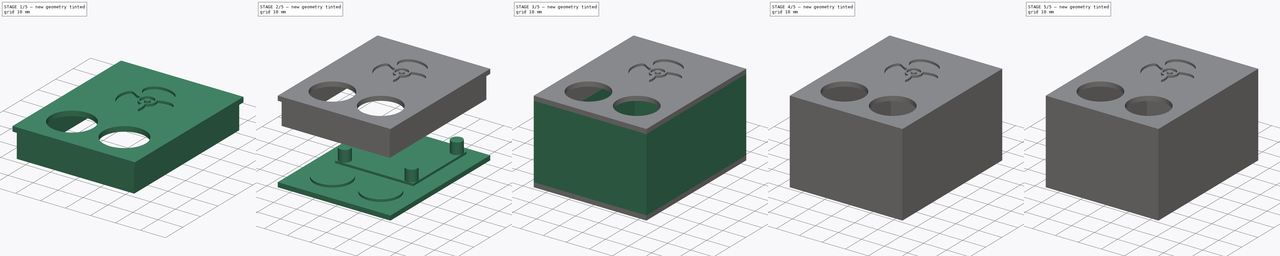
[diagram: build sequence overview — one tinted view per stage of 5, left to right]
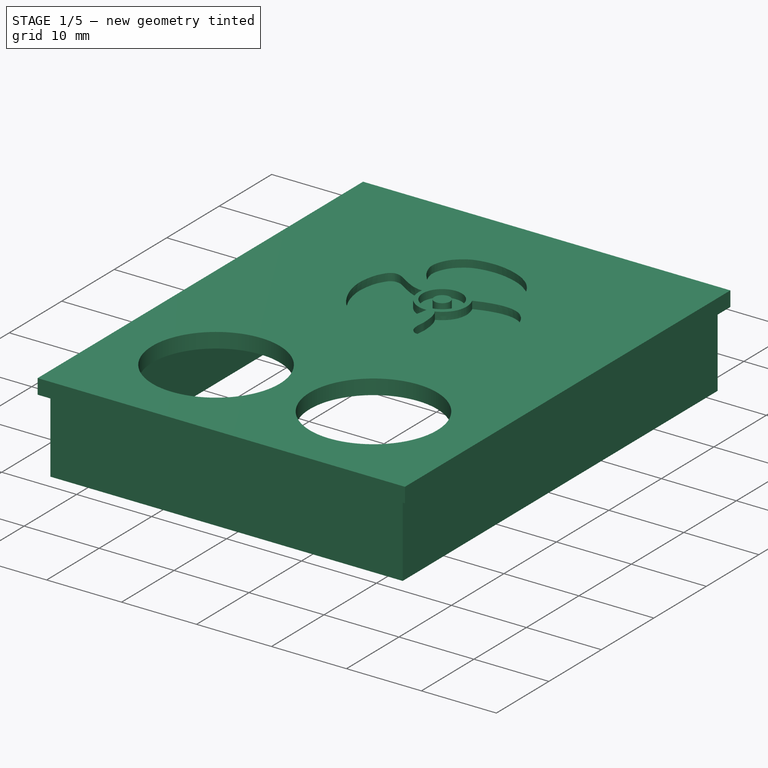
[diagram: stage 1 of 5 — iso view after this stage's code; geometry added in this stage tinted green]
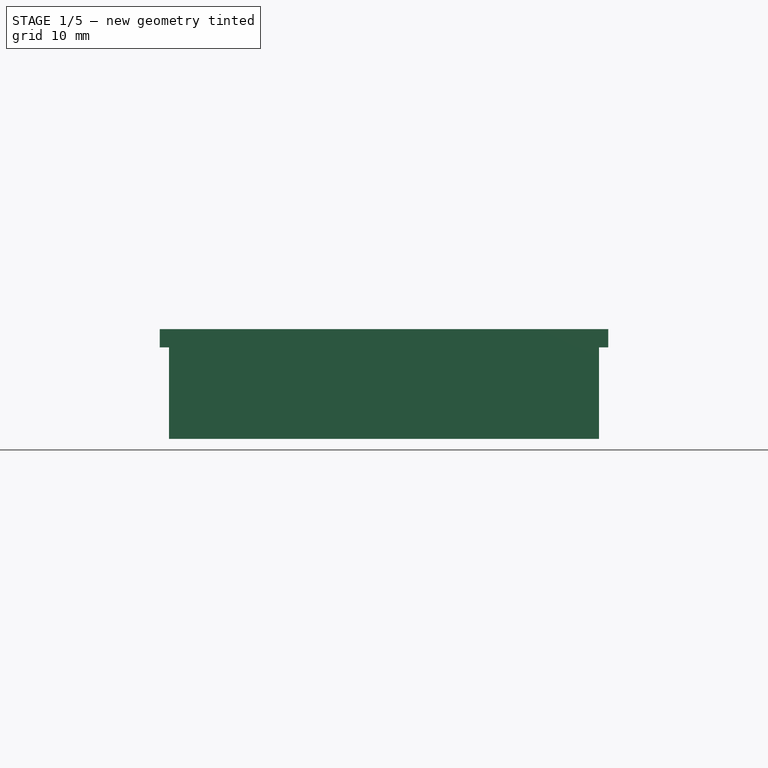
[diagram: stage 1 of 5 — front view after this stage's code; geometry added in this stage tinted green]
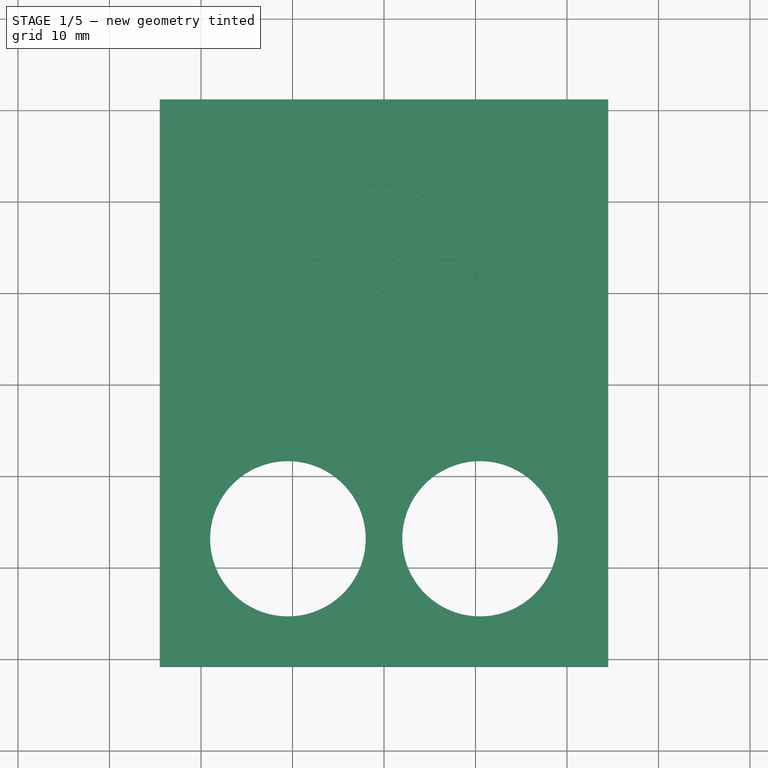
[diagram: stage 1 of 5 — top view after this stage's code; geometry added in this stage tinted green]
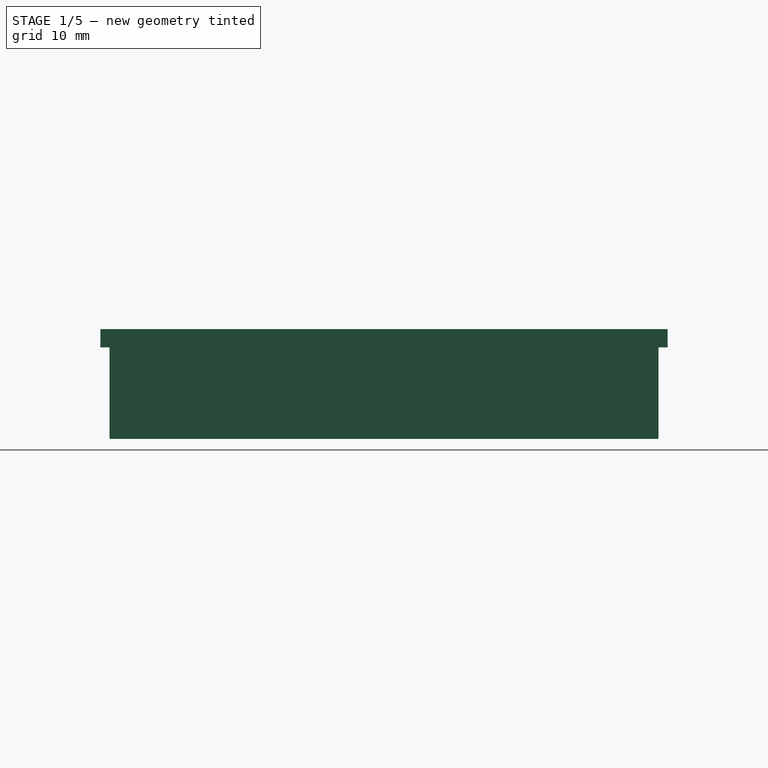
[diagram: stage 1 of 5 — right view after this stage's code; geometry added in this stage tinted green]
FCSTD DOCUMENT  (FreeCAD 0.19R)
Label: air-fan-box
License: All rights reserved
LicenseURL: http://en.wikipedia.org/wiki/All_rights_reserved
objects: Sketcher::SketchObject×13, PartDesign::Pad×7, PartDesign::Pocket×6, Part::Part2DObjectPython×4, Part::Extrusion×4, PartDesign::Body×3, Part::Cut×2, Part::Fuse×2, PartDesign::FeatureBase×1, Image::ImagePlane×1
note: 55 computed .brp shape members not serialized (recipe doc carries the construction recipe); baked Part::Feature solids carry a one-line shape summary decoded from their .brp

FEATURE [Sketcher::SketchObject] Sketch008
  AttachmentOffset = pos=(0,0,34) rot=(0,0,1;0rad)
  FullyConstrained = true
  MapMode = 5
  Placement = pos=(0,0,34) rot=(0,0,1;0rad)
  Support = -> [XY_Plane002]
  sketch-geometry (4):
    g0: LineSegment StartX=-24.5 StartY=31 StartZ=0 EndX=24.5 EndY=31 EndZ=0
    g1: LineSegment StartX=24.5 StartY=31 StartZ=0 EndX=24.5 EndY=-31 EndZ=0
    g2: LineSegment StartX=24.5 StartY=-31 StartZ=0 EndX=-24.5 EndY=-31 EndZ=0
    g3: LineSegment StartX=-24.5 StartY=-31 StartZ=0 EndX=-24.5 EndY=31 EndZ=0
  constraints (11):
    c: Coincident(g0,g1)
    c: Coincident(g1,g2)
    c: Coincident(g2,g3)
    c: Coincident(g3,g0)
    c: Horizontal(g0)
    c: Horizontal(g2)
    c: Vertical(g1)
    c: Vertical(g3)
    c: Symmetric(g0,g1,g-1)
    c: DistanceX(g0,g0) = 49
    c: DistanceY(g1,g1) = 62
FEATURE [PartDesign::Pad] Pad005
  Direction = (1,1,1)
  Length = 2
  Length2 = 100
  Profile = -> Sketch008
  Type = 0
FEATURE [Sketcher::SketchObject] Sketch009
  ExternalGeometry = -> [Pad005]
  FullyConstrained = true
  MapMode = 5
  Placement = pos=(0,0,34) rot=(1,0,0;3.14159rad)
  Support = -> [Pad005]
  sketch-geometry (8):
    g0: LineSegment StartX=-23.5 StartY=30 StartZ=0 EndX=23.5 EndY=30 EndZ=0
    g1: LineSegment StartX=23.5 StartY=30 StartZ=0 EndX=23.5 EndY=-30 EndZ=0
    g2: LineSegment StartX=23.5 StartY=-30 StartZ=0 EndX=-23.5 EndY=-30 EndZ=0
    g3: LineSegment StartX=-23.5 StartY=-30 StartZ=0 EndX=-23.5 EndY=30 EndZ=0
    g4: LineSegment StartX=-22.5 StartY=29 StartZ=0 EndX=22.5 EndY=29 EndZ=0
    g5: LineSegment StartX=22.5 StartY=29 StartZ=0 EndX=22.5 EndY=-29 EndZ=0
    g6: LineSegment StartX=22.5 StartY=-29 StartZ=0 EndX=-22.5 EndY=-29 EndZ=0
    g7: LineSegment StartX=-22.5 StartY=-29 StartZ=0 EndX=-22.5 EndY=29 EndZ=0
  constraints (24):
    c: Coincident(g0,g1)
    c: Coincident(g1,g2)
    c: Coincident(g2,g3)
    c: Coincident(g3,g0)
    c: Horizontal(g0)
    c: Horizontal(g2)
    c: Vertical(g1)
    c: Vertical(g3)
    c: Coincident(g4,g5)
    c: Coincident(g5,g6)
    c: Coincident(g6,g7)
    c: Coincident(g7,g4)
    c: Horizontal(g4)
    c: Horizontal(g6)
    c: Vertical(g5)
    c: Vertical(g7)
    c: DistanceX(g-3,g0) = 1
    c: DistanceX(g0,g4) = 1
    c: DistanceX(g5,g1) = 1
    c: DistanceX(g1,g-4) = 1
    c: DistanceY(g0,g-3) = 1
    c: DistanceY(g4,g0) = 1
    c: DistanceY(g1,g5) = 1
    c: DistanceY(g-4,g1) = 1
FEATURE [PartDesign::Pad] Pad006
  BaseFeature = -> Pad005
  Direction = (1,1,1)
  Length = 10
  Length2 = 100
  Profile = -> Sketch009
  Type = 0
FEATURE [Sketcher::SketchObject] Sketch010
  ExternalGeometry = -> [Pad006]
  FullyConstrained = true
  MapMode = 5
  Placement = pos=(0,0,36) rot=(0,0,1;0rad)
  Support = -> [Pad006]
  sketch-geometry (2):
    g0: Circle CenterX=-10.5 CenterY=-17 CenterZ=0 NormalX=0 NormalY=0 NormalZ=1 AngleXU=0 Radius=8.5
    g1: Circle CenterX=10.5 CenterY=-17 CenterZ=0 NormalX=0 NormalY=0 NormalZ=1 AngleXU=0 Radius=8.5
  constraints (5):
    c: Diameter(g0) = 17
    c: Diameter(g1) = 17
    c: Symmetric(g0,g1,g-2)
    c: DistanceX(g1,g-3) = 14
    c: DistanceY(g-3,g1) = 14
FEATURE [PartDesign::Pocket] Pocket003
  BaseFeature = -> Pad006
  Length = 2
  Length2 = 100
  Profile = -> Sketch010
  Type = 0
FEATURE [PartDesign::Body] Body001  label="box"
  BaseFeature = -> Fusion001
  Group = -> [BaseFeature,Sketch011,Pocket004]
  Origin = -> Origin001
  Tip = -> Pocket004
FEATURE [Image::ImagePlane] ImagePlane
  Placement = pos=(0,11,29) rot=(0,0,1;0rad)
  XSize = 30
  YSize = 30
FEATURE [Sketcher::SketchObject] Sketch012
  FullyConstrained = false
  MapMode = 5
  Placement = pos=(0,0,36) rot=(0,0,1;0rad)
  Support = -> [Pocket003]
  sketch-geometry (342):
    g0-g15: Circle x16 (B-spline internal-alignment scaffolding for g16; pole/knot coordinates omitted)
    g16: BSplineCurve PolesCount=16 KnotsCount=14 Degree=3 IsPeriodic=0
    g17-g30: GeomPoint x14 (B-spline internal-alignment scaffolding for g16; pole/knot coordinates omitted)
    g31-g42: Circle x12 (B-spline internal-alignment scaffolding for g43; pole/knot coordinates omitted)
    g43: BSplineCurve PolesCount=12 KnotsCount=10 Degree=3 IsPeriodic=0
    g44-g53: GeomPoint x10 (B-spline internal-alignment scaffolding for g43; pole/knot coordinates omitted)
    g54-g69: Circle x16 (B-spline internal-alignment scaffolding for g70; pole/knot coordinates omitted)
    g70: BSplineCurve PolesCount=16 KnotsCount=14 Degree=3 IsPeriodic=0
    g71-g84: GeomPoint x14 (B-spline internal-alignment scaffolding for g70; pole/knot coordinates omitted)
    g85-g95: Circle x11 (B-spline internal-alignment scaffolding for g96; pole/knot coordinates omitted)
    g96: BSplineCurve PolesCount=11 KnotsCount=9 Degree=3 IsPeriodic=0
    g97-g105: GeomPoint x9 (B-spline internal-alignment scaffolding for g96; pole/knot coordinates omitted)
    g106-g150: Circle x45 (B-spline internal-alignment scaffolding for g151; pole/knot coordinates omitted)
    g151: BSplineCurve PolesCount=45 KnotsCount=43 Degree=3 IsPeriodic=0
    g152-g194: GeomPoint x43 (B-spline internal-alignment scaffolding for g151; pole/knot coordinates omitted)
    g195-g211: Circle x17 (B-spline internal-alignment scaffolding for g212; pole/knot coordinates omitted)
    g212: BSplineCurve PolesCount=17 KnotsCount=15 Degree=3 IsPeriodic=0
    g213-g227: GeomPoint x15 (B-spline internal-alignment scaffolding for g212; pole/knot coordinates omitted)
    g228-g270: Circle x43 (B-spline internal-alignment scaffolding for g271; pole/knot coordinates omitted)
    g271: BSplineCurve PolesCount=43 KnotsCount=41 Degree=3 IsPeriodic=0
    g272-g312: GeomPoint x41 (B-spline internal-alignment scaffolding for g271; pole/knot coordinates omitted)
    g313-g326: Circle x14 (B-spline internal-alignment scaffolding for g327; pole/knot coordinates omitted)
    g327: BSplineCurve PolesCount=14 KnotsCount=12 Degree=3 IsPeriodic=0
    g328-g339: GeomPoint x12 (B-spline internal-alignment scaffolding for g327; pole/knot coordinates omitted)
    g340: Circle CenterX=0.008964 CenterY=11.0773 CenterZ=0 NormalX=0 NormalY=0 NormalZ=1 AngleXU=0 Radius=1.04924
    g341: Circle CenterX=0.008964 CenterY=11.0773 CenterZ=0 NormalX=0 NormalY=0 NormalZ=1 AngleXU=0 Radius=2.60691
  constraints (47):
    c: Weight(g0) = 1
    c: Equal(g0, g1-g5) x5
    c: PointOnObject(g5,g4)
    c: Equal(g0, g6-g12) x7
    c: PointOnObject(g12,g11)
    c: Equal(g0,g13)
    c: Equal(g0,g14)
    c: Equal(g0,g15)
    c: InternalAlignment(g0-g15 -> g16) x16
    c: InternalAlignment(g17-g30 -> g16) x14
    c: Coincident(g43,g16)
    c: Weight(g31) = 1
    c: Equal(g31, g32-g42) x11
    c: InternalAlignment(g31-g42 -> g43) x12
    c: InternalAlignment(g44-g53 -> g43) x10
    c: Coincident(g70,g43)
    c: Weight(g54) = 1
    c: Equal(g54, g55-g69) x15
    c: InternalAlignment(g54-g69 -> g70) x16
    c: InternalAlignment(g71-g84 -> g70) x14
    c: Coincident(g96,g16)
    c: Weight(g85) = 1
    c: Equal(g85, g86-g95) x10
    c: Coincident(g96,g70)
    c: InternalAlignment(g85-g95 -> g96) x11
    c: InternalAlignment(g97-g105 -> g96) x9
    c: Weight(g106) = 1
    c: Equal(g106, g107-g150) x44
    c: InternalAlignment(g106-g150 -> g151) x45
    c: InternalAlignment(g152-g194 -> g151) x43
    c: Coincident(g212,g151)
    c: Weight(g195) = 1
    c: Equal(g195, g196-g211) x16
    c: Coincident(g212,g151)
    c: InternalAlignment(g195-g211 -> g212) x17
    c: InternalAlignment(g213-g227 -> g212) x15
    c: Weight(g228) = 1
    c: Equal(g228, g229-g270) x42
    c: InternalAlignment(g228-g270 -> g271) x43
    c: InternalAlignment(g272-g312 -> g271) x41
    c: Coincident(g327,g271)
    c: Weight(g313) = 1
    c: Equal(g313, g314-g326) x13
    c: Coincident(g327,g271)
    c: InternalAlignment(g313-g326 -> g327) x14
    c: InternalAlignment(g328-g339 -> g327) x12
    c: Coincident(g341,g340)
FEATURE [PartDesign::Pocket] Pocket005
  BaseFeature = -> Pocket003
  Length = 1
  Length2 = 100
  Profile = -> Sketch012
  Type = 0
FEATURE [PartDesign::Body] Body002  label="top"
  Group = -> [Sketch008,Pad005,Sketch009,Pad006,Sketch010,Pocket003,Sketch012,Pocket005]
  Origin = -> Origin002
  Tip = -> Pocket005
note: 4 file-system paths scrubbed to <path> (originals preserved in the JSON sidecar)
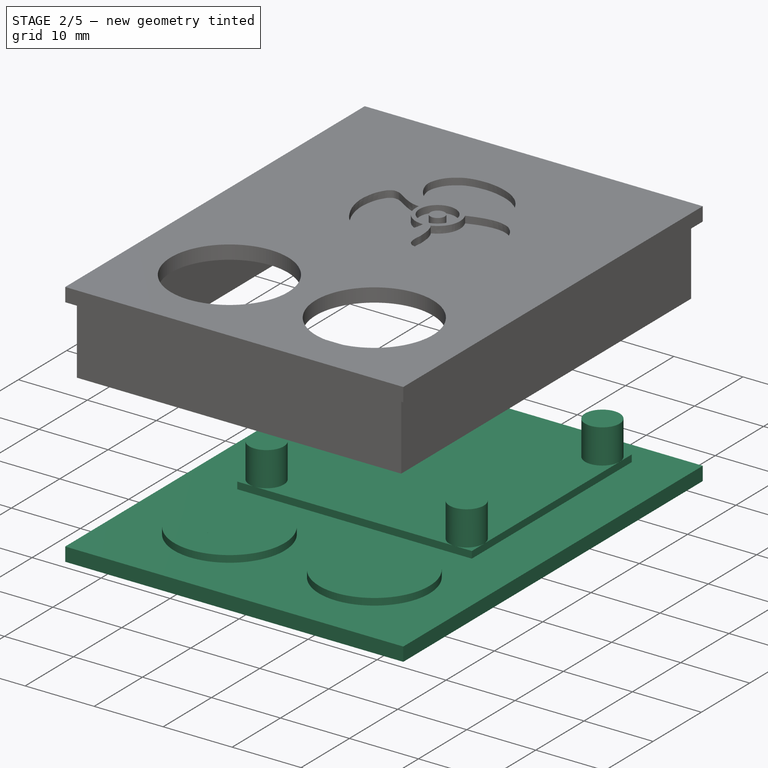
[diagram: stage 2 of 5 — iso view after this stage's code; geometry added in this stage tinted green]
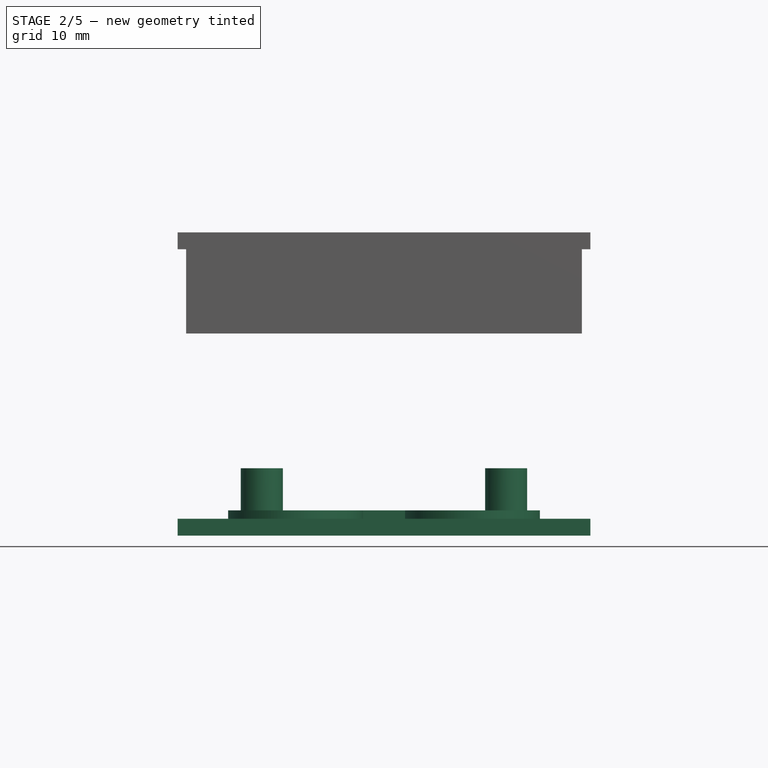
[diagram: stage 2 of 5 — front view after this stage's code; geometry added in this stage tinted green]
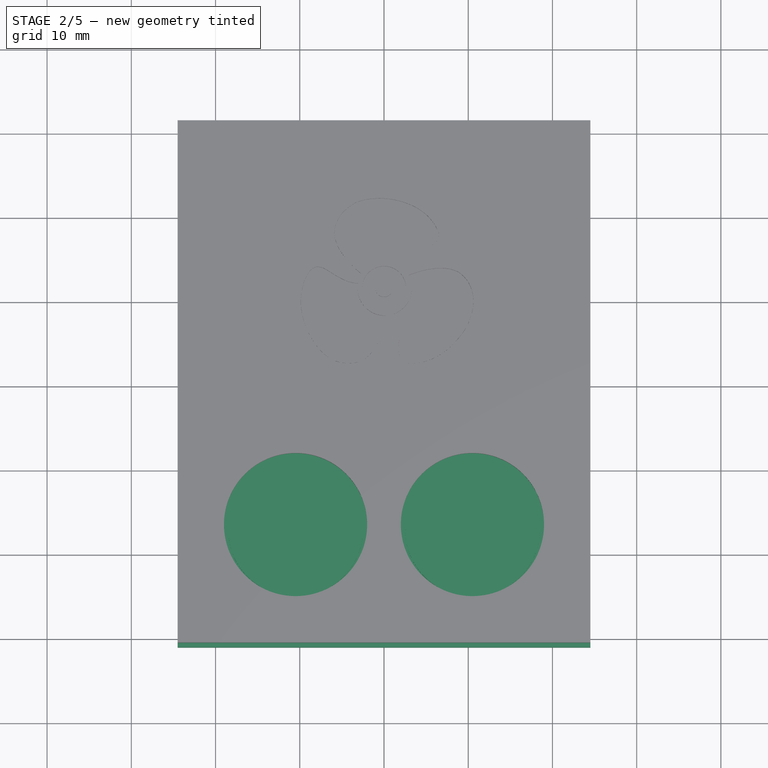
[diagram: stage 2 of 5 — top view after this stage's code; geometry added in this stage tinted green]
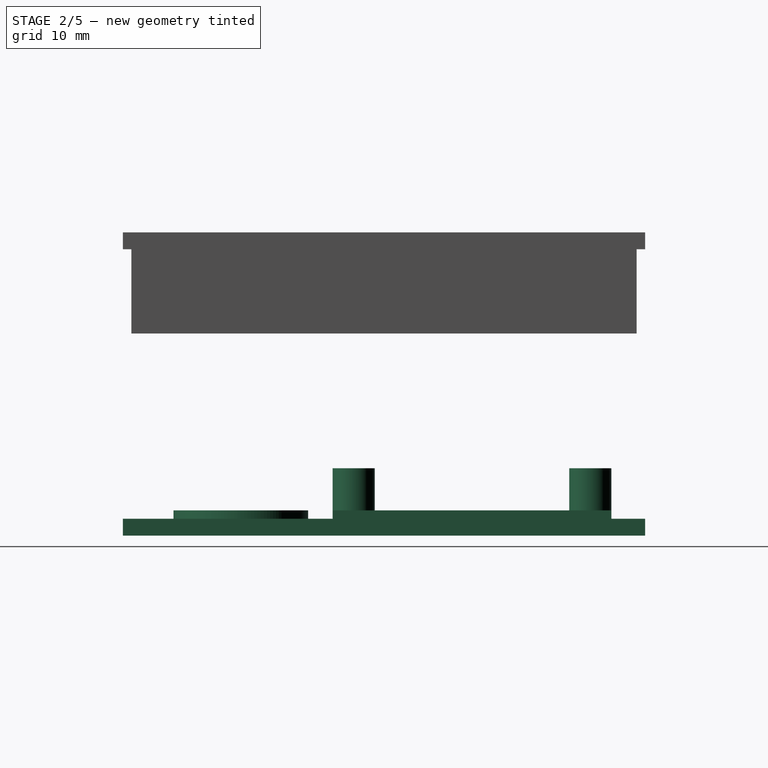
[diagram: stage 2 of 5 — right view after this stage's code; geometry added in this stage tinted green]
FEATURE [Sketcher::SketchObject] Sketch
  FullyConstrained = true
  MapMode = 5
  Support = -> [XY_Plane]
  sketch-geometry (4):
    g0: LineSegment StartX=-24.5 StartY=31 StartZ=0 EndX=24.5 EndY=31 EndZ=0
    g1: LineSegment StartX=24.5 StartY=31 StartZ=0 EndX=24.5 EndY=-31 EndZ=0
    g2: LineSegment StartX=24.5 StartY=-31 StartZ=0 EndX=-24.5 EndY=-31 EndZ=0
    g3: LineSegment StartX=-24.5 StartY=-31 StartZ=0 EndX=-24.5 EndY=31 EndZ=0
  constraints (11):
    c: Coincident(g0,g1)
    c: Coincident(g1,g2)
    c: Coincident(g2,g3)
    c: Coincident(g3,g0)
    c: Horizontal(g0)
    c: Horizontal(g2)
    c: Vertical(g1)
    c: Vertical(g3)
    c: Symmetric(g0,g1,g-1)
    c: DistanceY(g1,g1) = 62
    c: DistanceX(g0,g0) = 49
FEATURE [PartDesign::Pad] Pad
  Direction = (1,1,1)
  Length = 2
  Length2 = 100
  Profile = -> Sketch
  Type = 0
FEATURE [Sketcher::SketchObject] Sketch001
  ExternalGeometry = -> [Pad]
  FullyConstrained = true
  MapMode = 5
  Placement = pos=(0,0,2) rot=(0,0,1;0rad)
  Support = -> [Pad]
  sketch-geometry (4):
    g0: LineSegment StartX=-17 StartY=27 StartZ=0 EndX=17 EndY=27 EndZ=0
    g1: LineSegment StartX=17 StartY=27 StartZ=0 EndX=17 EndY=-6.1 EndZ=0
    g2: LineSegment StartX=17 StartY=-6.1 StartZ=0 EndX=-17 EndY=-6.1 EndZ=0
    g3: LineSegment StartX=-17 StartY=-6.1 StartZ=0 EndX=-17 EndY=27 EndZ=0
  constraints (11):
    c: Coincident(g0,g1)
    c: Coincident(g1,g2)
    c: Coincident(g2,g3)
    c: Coincident(g3,g0)
    c: Horizontal(g2)
    c: Vertical(g1)
    c: Vertical(g3)
    c: DistanceY(g1,g1) = 33.1
    c: DistanceX(g0,g0) = 34
    c: Symmetric(g0,g0,g-2)
    c: DistanceY(g0,g-3) = 4
FEATURE [PartDesign::Pad] Pad001
  BaseFeature = -> Pad
  Direction = (1,1,1)
  Length = 1
  Length2 = 100
  Profile = -> Sketch001
  Type = 0
FEATURE [Sketcher::SketchObject] Sketch002
  ExternalGeometry = -> [Pad001]
  FullyConstrained = true
  MapMode = 5
  Placement = pos=(0,0,2) rot=(0,0,1;0rad)
  Support = -> [Pad001]
  sketch-geometry (2):
    g0: Circle CenterX=-10.5 CenterY=-17 CenterZ=0 NormalX=0 NormalY=0 NormalZ=1 AngleXU=0 Radius=8
    g1: Circle CenterX=10.5 CenterY=-17 CenterZ=0 NormalX=0 NormalY=0 NormalZ=1 AngleXU=0 Radius=8
  constraints (5):
    c: Diameter(g0) = 16
    c: Diameter(g1) = 16
    c: Symmetric(g0,g1,g-2)
    c: DistanceY(g-3,g1) = 14
    c: DistanceX(g1,g-3) = 14
FEATURE [PartDesign::Pad] Pad002
  BaseFeature = -> Pad001
  Direction = (1,1,1)
  Length = 1
  Length2 = 100
  Profile = -> Sketch002
  Type = 0
FEATURE [Sketcher::SketchObject] Sketch003
  ExternalGeometry = -> [Pad002]
  FullyConstrained = true
  MapMode = 5
  Placement = pos=(0,0,3) rot=(0,0,1;0rad)
  Support = -> [Pad002]
  sketch-geometry (4):
    g0: Circle CenterX=-14.5 CenterY=24.5 CenterZ=0 NormalX=0 NormalY=0 NormalZ=1 AngleXU=0 Radius=2.5
    g1: Circle CenterX=14.5 CenterY=24.5 CenterZ=0 NormalX=0 NormalY=0 NormalZ=1 AngleXU=0 Radius=2.5
    g2: Circle CenterX=14.5 CenterY=-3.6 CenterZ=0 NormalX=0 NormalY=0 NormalZ=1 AngleXU=0 Radius=2.5
    g3: Circle CenterX=-14.5 CenterY=-3.6 CenterZ=0 NormalX=0 NormalY=0 NormalZ=1 AngleXU=0 Radius=2.5
  constraints (12):
    c: Diameter(g0) = 5
    c: Diameter(g1) = 5
    c: Diameter(g3) = 5
    c: Diameter(g2) = 5
    c: DistanceX(g-3,g0) = 2.5
    c: DistanceY(g0,g-3) = 2.5
    c: DistanceX(g1,g-3) = 2.5
    c: DistanceY(g1,g-3) = 2.5
    c: DistanceY(g-4,g2) = 2.5
    c: DistanceY(g-4,g3) = 2.5
    c: DistanceX(g-4,g3) = 2.5
    c: DistanceX(g2,g-4) = 2.5
FEATURE [PartDesign::Pad] Pad003
  BaseFeature = -> Pad002
  Direction = (1,1,1)
  Length = 5
  Length2 = 100
  Profile = -> Sketch003
  Type = 0
FEATURE [Part::Part2DObjectPython] ShapeString002  # Draft 2D object (typed FeaturePython)
  FontFile = <path>
  Placement = pos=(-13,-20,2) rot=(0,0,1;0rad)
  Size = 3
  String = G
  Tracking = 0
FEATURE [Part::Part2DObjectPython] ShapeString003  # Draft 2D object (typed FeaturePython)
  FontFile = <path>
  Placement = pos=(8.5,-20,2) rot=(0,0,1;0rad)
  Size = 3
  String = R
  Tracking = 0
FEATURE [Part::Extrusion] Extrude002
  Base = -> ShapeString002
  Dir = (0,0,1)
  DirMode = 2
  FaceMakerClass = Part::FaceMakerBullseye
  LengthFwd = 1
  LengthRev = 0
  Solid = false
  Symmetric = false
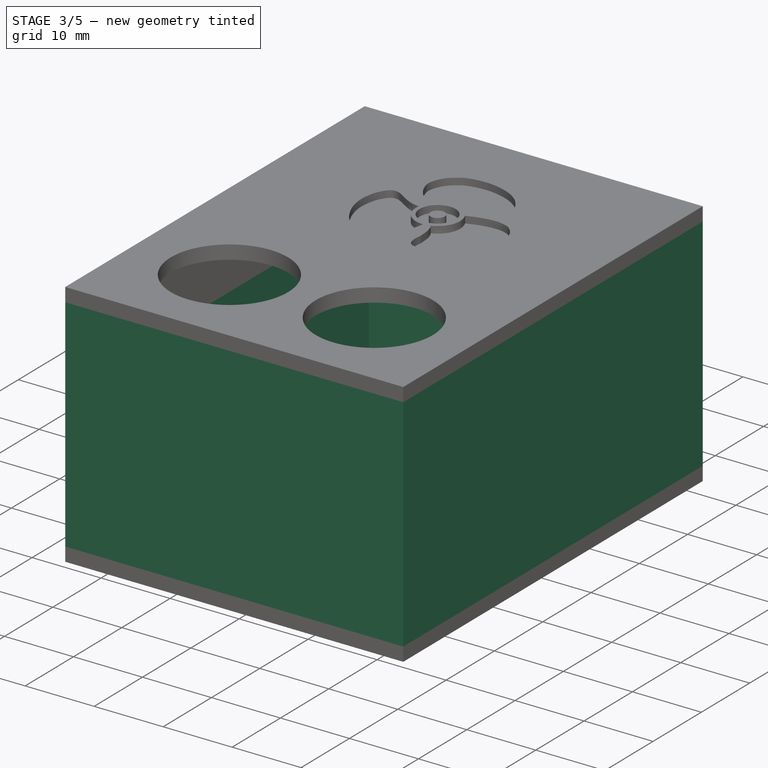
[diagram: stage 3 of 5 — iso view after this stage's code; geometry added in this stage tinted green]
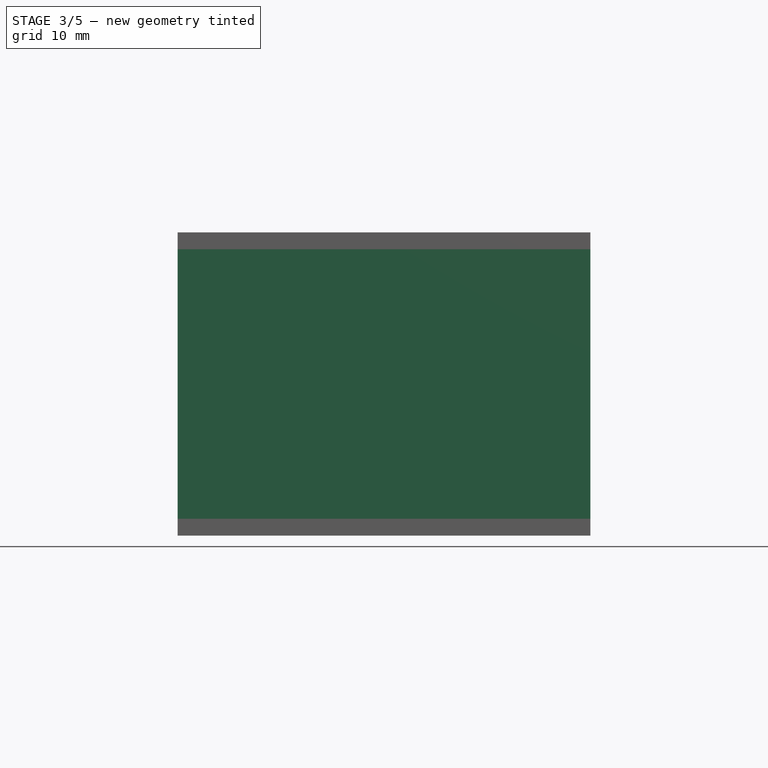
[diagram: stage 3 of 5 — front view after this stage's code; geometry added in this stage tinted green]
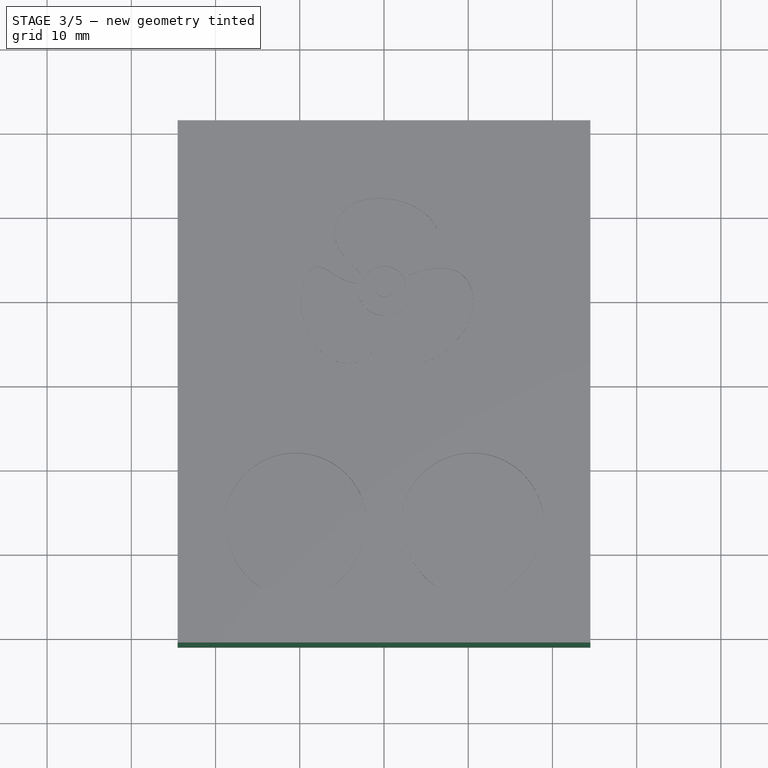
[diagram: stage 3 of 5 — top view after this stage's code; geometry added in this stage tinted green]
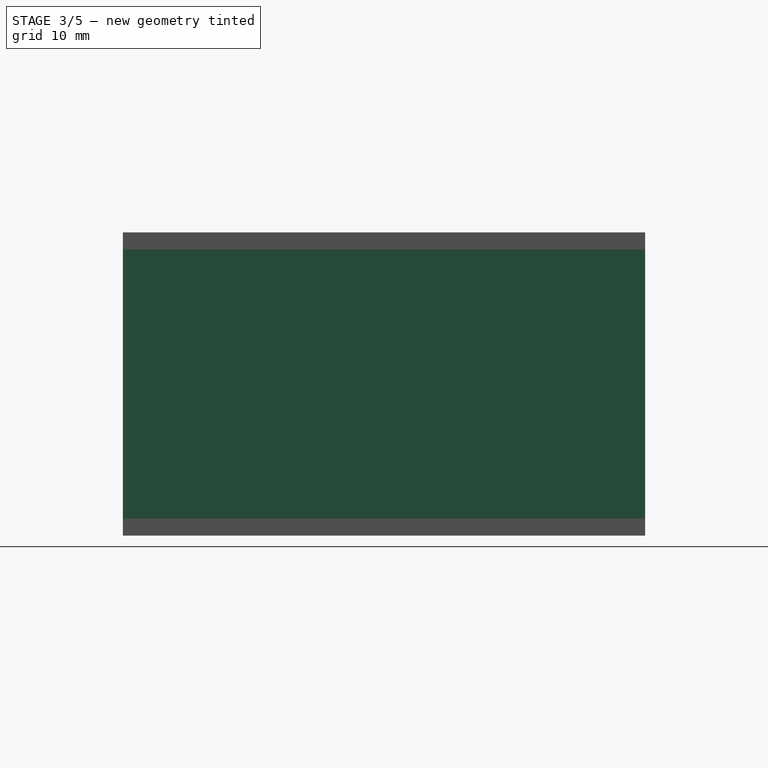
[diagram: stage 3 of 5 — right view after this stage's code; geometry added in this stage tinted green]
FEATURE [Sketcher::SketchObject] Sketch004
  ExternalGeometry = -> [Pad003]
  FullyConstrained = true
  MapMode = 5
  Placement = pos=(0,0,8) rot=(0,0,1;0rad)
  Support = -> [Pad003]
  sketch-geometry (4):
    g0: Circle CenterX=-14.5 CenterY=24.5 CenterZ=0 NormalX=0 NormalY=0 NormalZ=1 AngleXU=0 Radius=1.2
    g1: Circle CenterX=14.5 CenterY=24.5 CenterZ=0 NormalX=0 NormalY=0 NormalZ=1 AngleXU=0 Radius=1.2
    g2: Circle CenterX=-14.5 CenterY=-3.6 CenterZ=0 NormalX=0 NormalY=0 NormalZ=1 AngleXU=0 Radius=1.2
    g3: Circle CenterX=14.5 CenterY=-3.6 CenterZ=0 NormalX=0 NormalY=0 NormalZ=1 AngleXU=0 Radius=1.2
  constraints (8):
    c: Coincident(g0,g-6)
    c: Coincident(g1,g-3)
    c: Coincident(g2,g-5)
    c: Coincident(g3,g-4)
    c: Diameter(g0) = 2.4
    c: Diameter(g1) = 2.4
    c: Diameter(g3) = 2.4
    c: Diameter(g2) = 2.4
FEATURE [PartDesign::Pocket] Pocket
  BaseFeature = -> Pad003
  Length = 6
  Length2 = 100
  Profile = -> Sketch004
  Type = 0
FEATURE [Sketcher::SketchObject] Sketch005
  ExternalGeometry = -> [Pocket]
  FullyConstrained = true
  MapMode = 5
  Placement = pos=(0,0,2) rot=(0,0,1;0rad)
  Support = -> [Pocket]
  sketch-geometry (8):
    g0: LineSegment StartX=-24.5 StartY=31 StartZ=0 EndX=24.5 EndY=31 EndZ=0
    g1: LineSegment StartX=24.5 StartY=31 StartZ=0 EndX=24.5 EndY=-31 EndZ=0
    g2: LineSegment StartX=24.5 StartY=-31 StartZ=0 EndX=-24.5 EndY=-31 EndZ=0
    g3: LineSegment StartX=-24.5 StartY=-31 StartZ=0 EndX=-24.5 EndY=31 EndZ=0
    g4: LineSegment StartX=-22.5 StartY=29 StartZ=0 EndX=22.5 EndY=29 EndZ=0
    g5: LineSegment StartX=22.5 StartY=29 StartZ=0 EndX=22.5 EndY=-29 EndZ=0
    g6: LineSegment StartX=22.5 StartY=-29 StartZ=0 EndX=-22.5 EndY=-29 EndZ=0
    g7: LineSegment StartX=-22.5 StartY=-29 StartZ=0 EndX=-22.5 EndY=29 EndZ=0
  constraints (22):
    c: Coincident(g0,g1)
    c: Coincident(g1,g2)
    c: Coincident(g2,g3)
    c: Coincident(g3,g0)
    c: Horizontal(g0)
    c: Horizontal(g2)
    c: Vertical(g1)
    c: Vertical(g3)
    c: Coincident(g0,g-3)
    c: Coincident(g1,g-4)
    c: Coincident(g4,g5)
    c: Coincident(g5,g6)
    c: Coincident(g6,g7)
    c: Coincident(g7,g4)
    c: Horizontal(g4)
    c: Horizontal(g6)
    c: Vertical(g5)
    c: Vertical(g7)
    c: DistanceX(g0,g4) = 2
    c: DistanceX(g5,g1) = 2
    c: DistanceY(g1,g5) = 2
    c: DistanceY(g4,g0) = 2
FEATURE [PartDesign::Pad] Pad004
  BaseFeature = -> Pocket
  Direction = (1,1,1)
  Length = 32
  Length2 = 100
  Profile = -> Sketch005
  Type = 0
FEATURE [Sketcher::SketchObject] Sketch006
  ExternalGeometry = -> [Pad004]
  FullyConstrained = true
  MapMode = 5
  Placement = pos=(0,0,34) rot=(0,0,1;0rad)
  Support = -> [Pad004]
  sketch-geometry (4):
    g0: LineSegment StartX=-23.5 StartY=30 StartZ=0 EndX=23.5 EndY=30 EndZ=0
    g1: LineSegment StartX=23.5 StartY=30 StartZ=0 EndX=23.5 EndY=-30 EndZ=0
    g2: LineSegment StartX=23.5 StartY=-30 StartZ=0 EndX=-23.5 EndY=-30 EndZ=0
    g3: LineSegment StartX=-23.5 StartY=-30 StartZ=0 EndX=-23.5 EndY=30 EndZ=0
  constraints (12):
    c: Coincident(g0,g1)
    c: Coincident(g1,g2)
    c: Coincident(g2,g3)
    c: Coincident(g3,g0)
    c: Horizontal(g0)
    c: Horizontal(g2)
    c: Vertical(g1)
    c: Vertical(g3)
    c: DistanceX(g-4,g1) = 1
    c: DistanceX(g0,g-3) = 1
    c: DistanceY(g-3,g0) = 1
    c: DistanceY(g1,g-4) = 1
FEATURE [PartDesign::Pocket] Pocket001
  BaseFeature = -> Pad004
  Length = 10
  Length2 = 100
  Profile = -> Sketch006
  Type = 0
FEATURE [Sketcher::SketchObject] Sketch007
  FullyConstrained = true
  MapMode = 5
  Placement = pos=(0,31,0) rot=(0,0.707107,0.707107;3.14159rad)
  Support = -> [Pocket001]
  sketch-geometry (4):
    g0: LineSegment StartX=-2.5 StartY=14 StartZ=0 EndX=2.5 EndY=14 EndZ=0
    g1: LineSegment StartX=2.5 StartY=14 StartZ=0 EndX=2.5 EndY=9 EndZ=0
    g2: LineSegment StartX=2.5 StartY=9 StartZ=0 EndX=-2.5 EndY=9 EndZ=0
    g3: LineSegment StartX=-2.5 StartY=9 StartZ=0 EndX=-2.5 EndY=14 EndZ=0
  constraints (11):
    c: Coincident(g0,g1)
    c: Coincident(g1,g2)
    c: Coincident(g2,g3)
    c: Coincident(g3,g0)
    c: Horizontal(g2)
    c: Vertical(g1)
    c: Vertical(g3)
    c: Symmetric(g0,g0,g-2)
    c: DistanceX(g0,g0) = 5
    c: DistanceY(g1,g1) = 5
    c: DistanceY(g-1,g1) = 9
FEATURE [PartDesign::Pocket] Pocket002
  BaseFeature = -> Pocket001
  Length = 2
  Length2 = 100
  Profile = -> Sketch007
  Type = 0
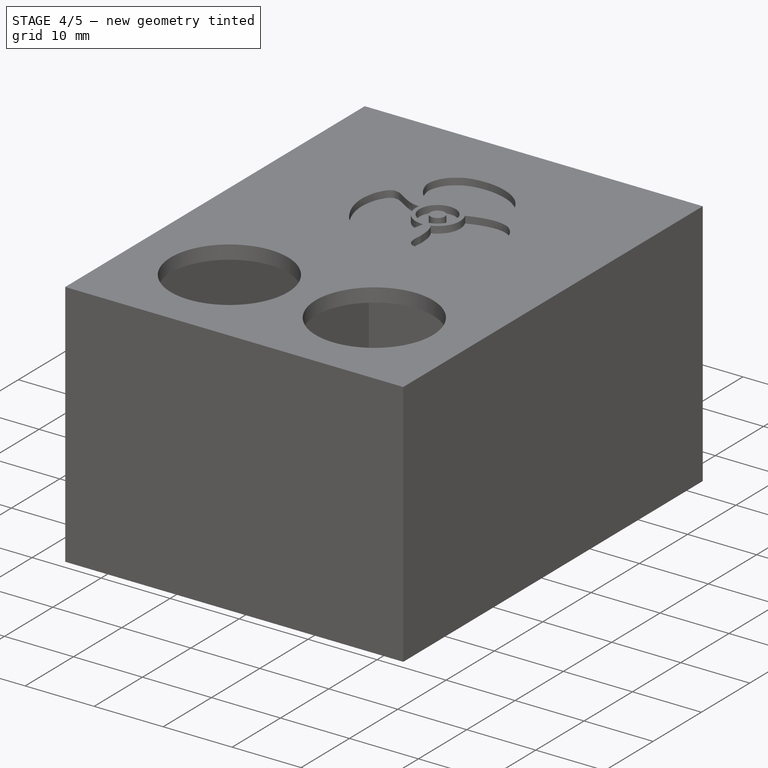
[diagram: stage 4 of 5 — iso view after this stage's code; geometry added in this stage tinted green]
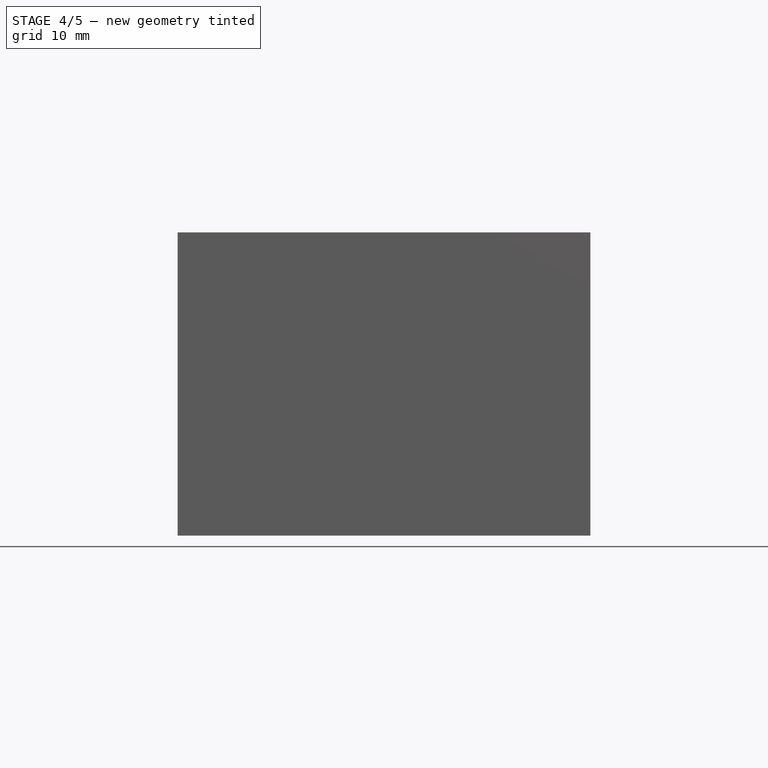
[diagram: stage 4 of 5 — front view after this stage's code; geometry added in this stage tinted green]
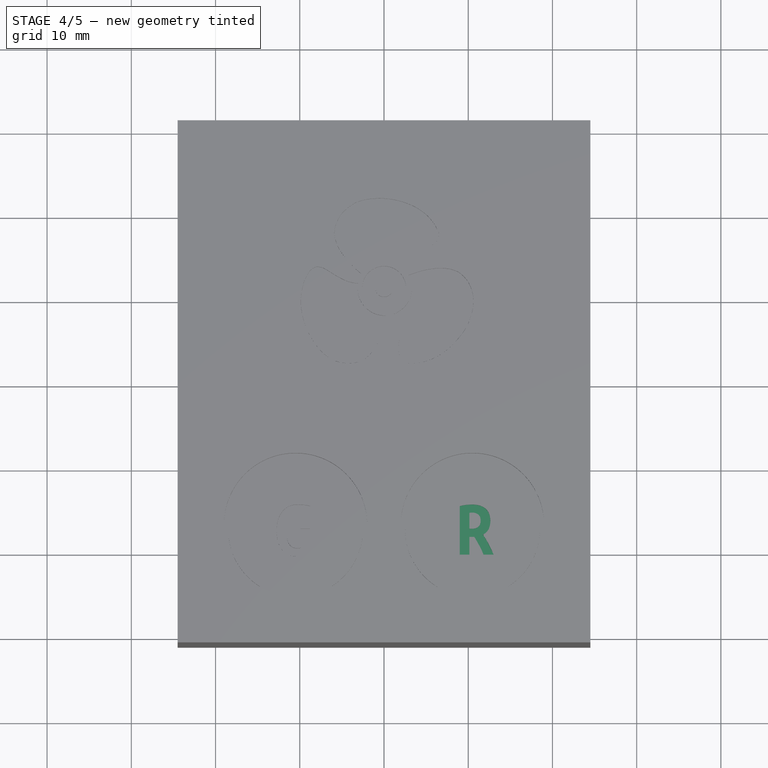
[diagram: stage 4 of 5 — top view after this stage's code; geometry added in this stage tinted green]
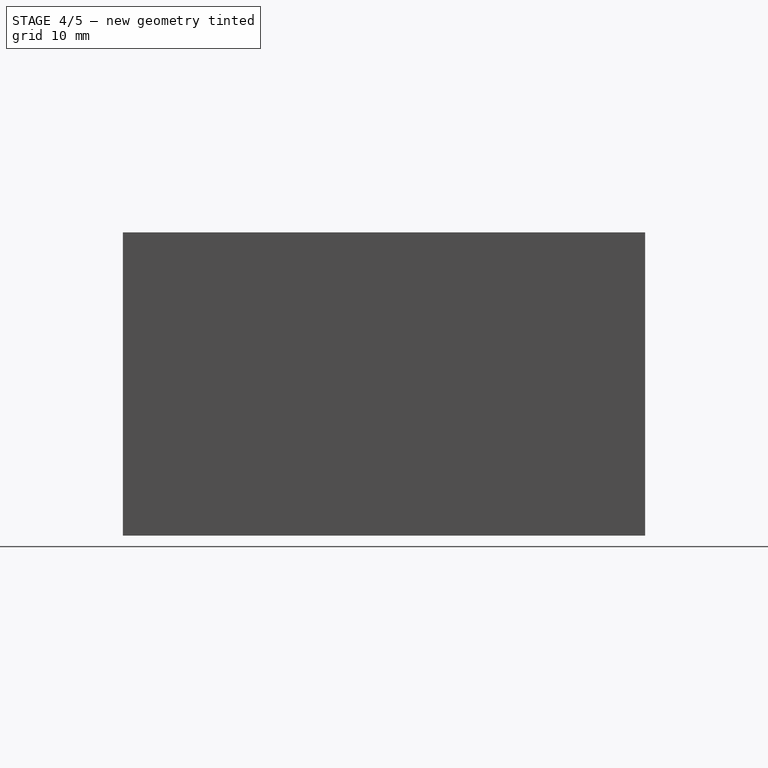
[diagram: stage 4 of 5 — right view after this stage's code; geometry added in this stage tinted green]
FEATURE [PartDesign::Body] Body
  Group = -> [Sketch,Pad,Sketch001,Pad001,Sketch002,Pad002,Sketch003,Pad003,Sketch004,Pocket,Sketch005,Pad004,Sketch006,Pocket001,Sketch007,Pocket002]
  Origin = -> Origin
  Tip = -> Pocket002
FEATURE [Part::Part2DObjectPython] ShapeString  # Draft 2D object (typed FeaturePython)
  FontFile = <path>
  Placement = pos=(18,12,2) rot=(0,0,1;0rad)
  Size = 2
  String = G
  Tracking = 0
FEATURE [Part::Extrusion] Extrude
  Base = -> ShapeString
  Dir = (0,0,1)
  DirMode = 2
  FaceMakerClass = Part::FaceMakerBullseye
  LengthFwd = 1
  LengthRev = 0
  Solid = false
  Symmetric = false
FEATURE [Part::Extrusion] Extrude003
  Base = -> ShapeString003
  Dir = (0,0,1)
  DirMode = 2
  FaceMakerClass = Part::FaceMakerBullseye
  LengthFwd = 1
  LengthRev = 0
  Solid = false
  Symmetric = false
FEATURE [Part::Cut] Cut
  Base = -> Body
  Tool = -> Extrude002
FEATURE [Part::Cut] Cut001
  Base = -> Cut
  Tool = -> Extrude003
FEATURE [Part::Fuse] Fusion
  Base = -> Extrude
  Tool = -> Cut001
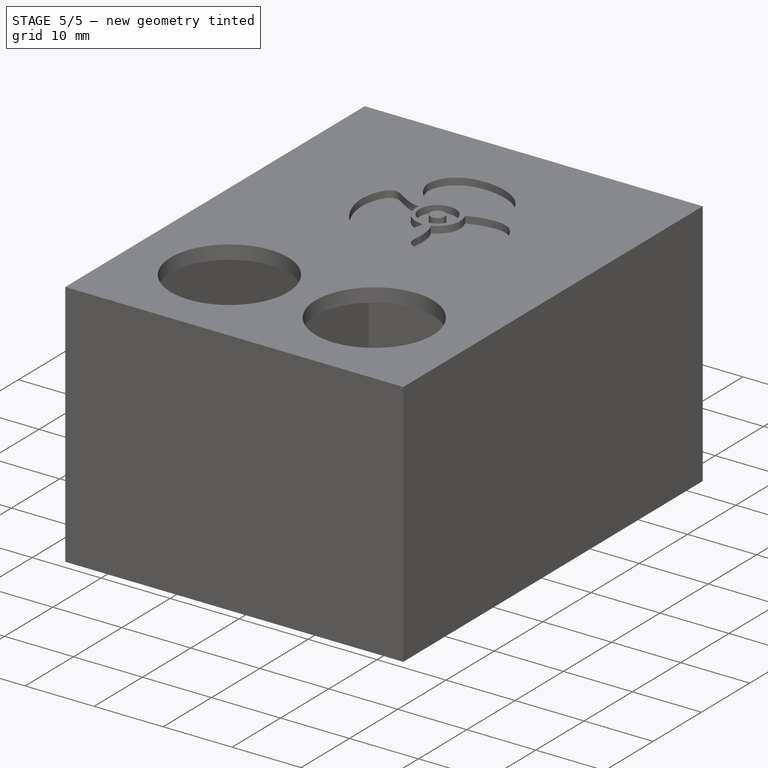
[diagram: stage 5 of 5 — iso view after this stage's code; geometry added in this stage tinted green]
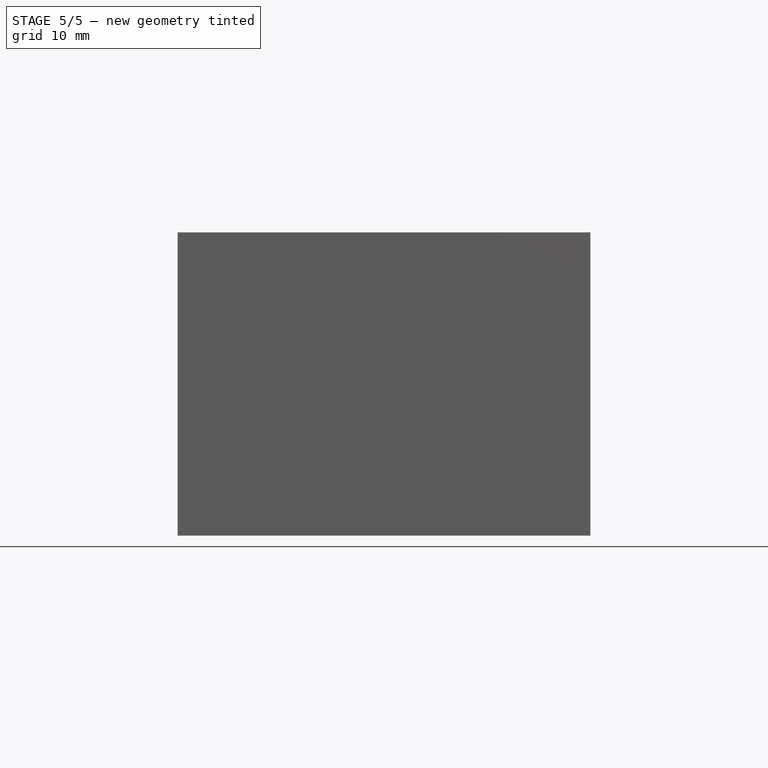
[diagram: stage 5 of 5 — front view after this stage's code; geometry added in this stage tinted green]
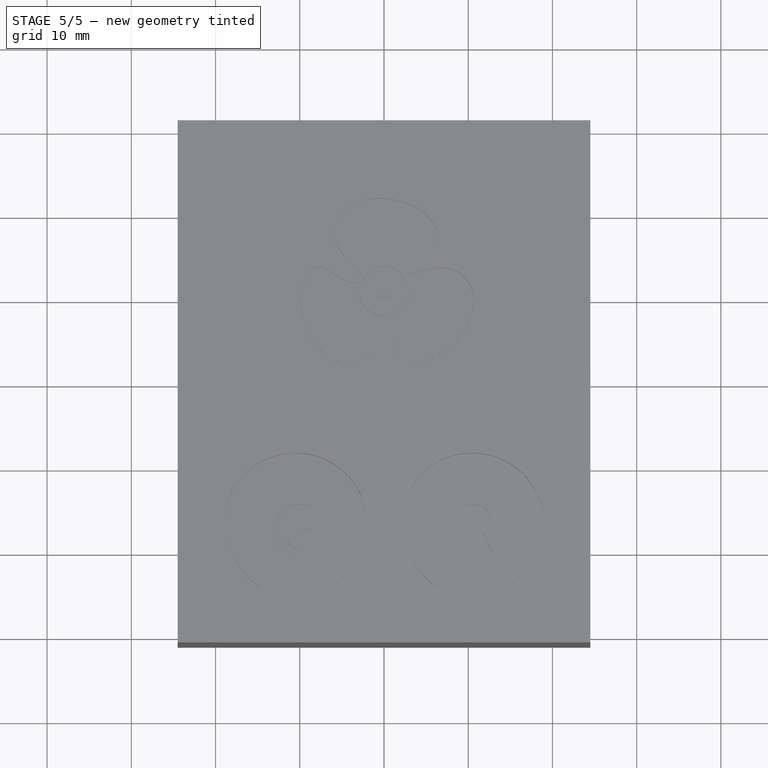
[diagram: stage 5 of 5 — top view after this stage's code; geometry added in this stage tinted green]
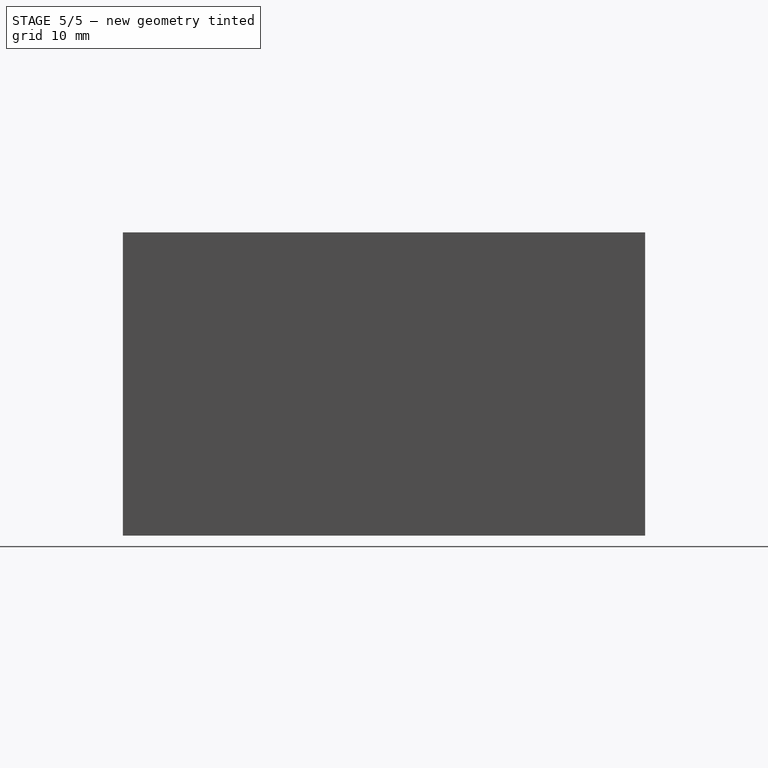
[diagram: stage 5 of 5 — right view after this stage's code; geometry added in this stage tinted green]
FEATURE [Part::Part2DObjectPython] ShapeString001  # Draft 2D object (typed FeaturePython)
  FontFile = <path>
  Placement = pos=(18,4,2) rot=(0,0,1;0rad)
  Size = 2
  String = R
  Tracking = 0
FEATURE [Part::Extrusion] Extrude001
  Base = -> ShapeString001
  Dir = (0,0,1)
  DirMode = 2
  FaceMakerClass = Part::FaceMakerBullseye
  LengthFwd = 1
  LengthRev = 0
  Solid = false
  Symmetric = false
FEATURE [Part::Fuse] Fusion001
  Base = -> Extrude001
  Tool = -> Fusion
FEATURE [PartDesign::FeatureBase] BaseFeature
  BaseFeature = -> Fusion001
FEATURE [Sketcher::SketchObject] Sketch011
  FullyConstrained = true
  MapMode = 5
  Placement = pos=(0,0,2) rot=(0,0,1;0rad)
  Support = -> [BaseFeature]
  sketch-geometry (2):
    g0: Circle CenterX=19.7 CenterY=0 CenterZ=0 NormalX=0 NormalY=0 NormalZ=1 AngleXU=0 Radius=1.5
    g1: Circle CenterX=-19.7 CenterY=0 CenterZ=0 NormalX=0 NormalY=0 NormalZ=1 AngleXU=0 Radius=1.5
  constraints (5):
    c: PointOnObject(g0,g-1)
    c: Symmetric(g1,g0,g-2)
    c: DistanceX(g-1,g0) = 19.7
    c: Diameter(g0) = 3
    c: Diameter(g1) = 3
FEATURE [PartDesign::Pocket] Pocket004
  BaseFeature = -> BaseFeature
  Length = 1.5
  Length2 = 100
  Profile = -> Sketch011
  Type = 0
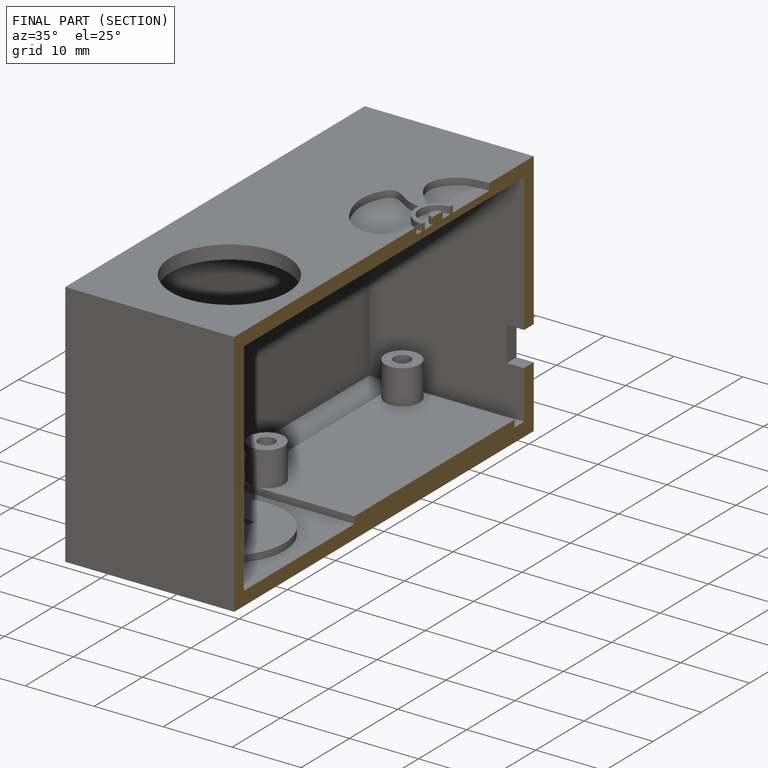
[diagram: finished part — half-section view (interior)]
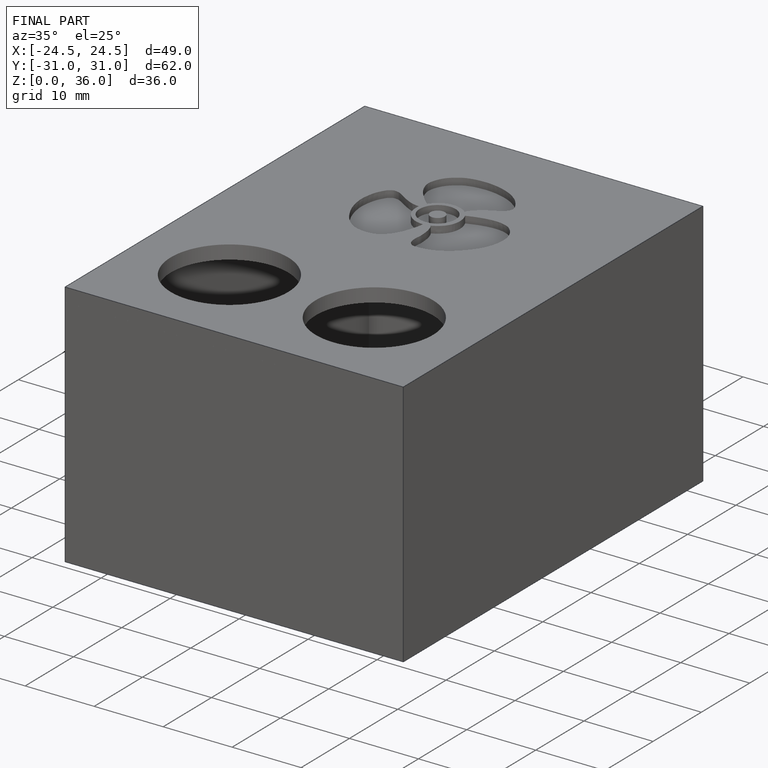
[diagram: finished part — iso view with bounding-box wireframe]
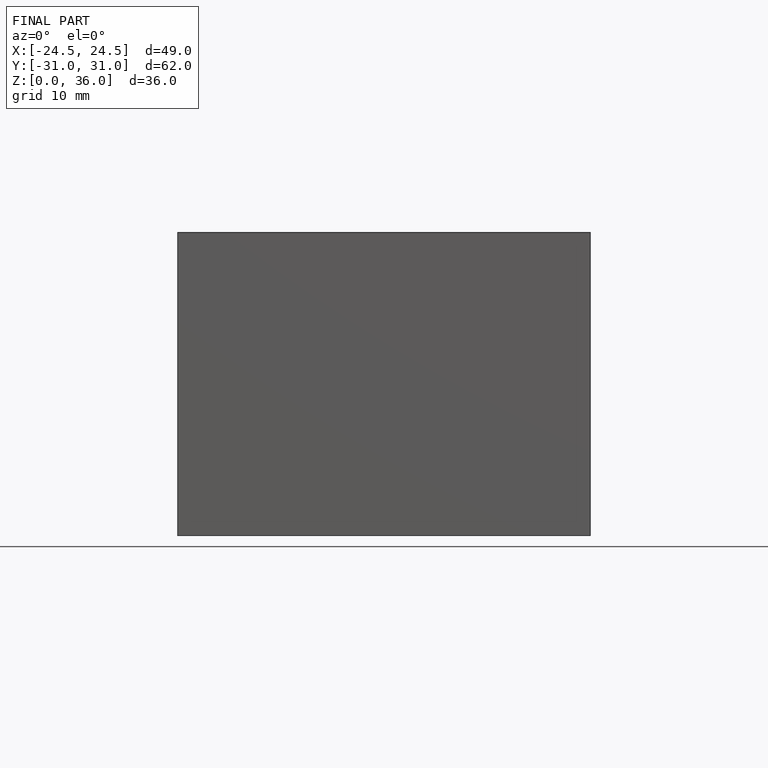
[diagram: finished part — front view with bounding-box wireframe]
